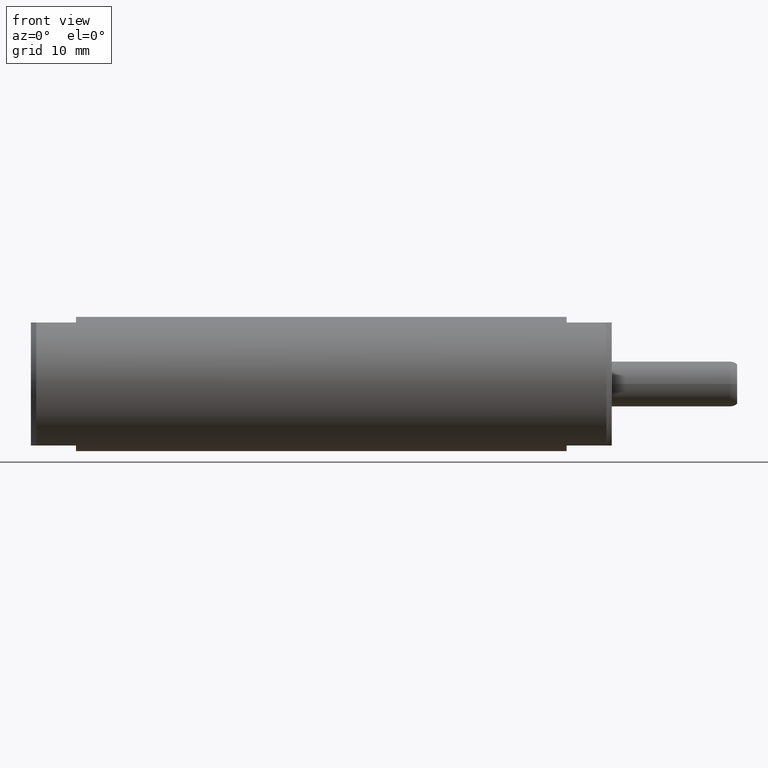
[diagram: clean part render]
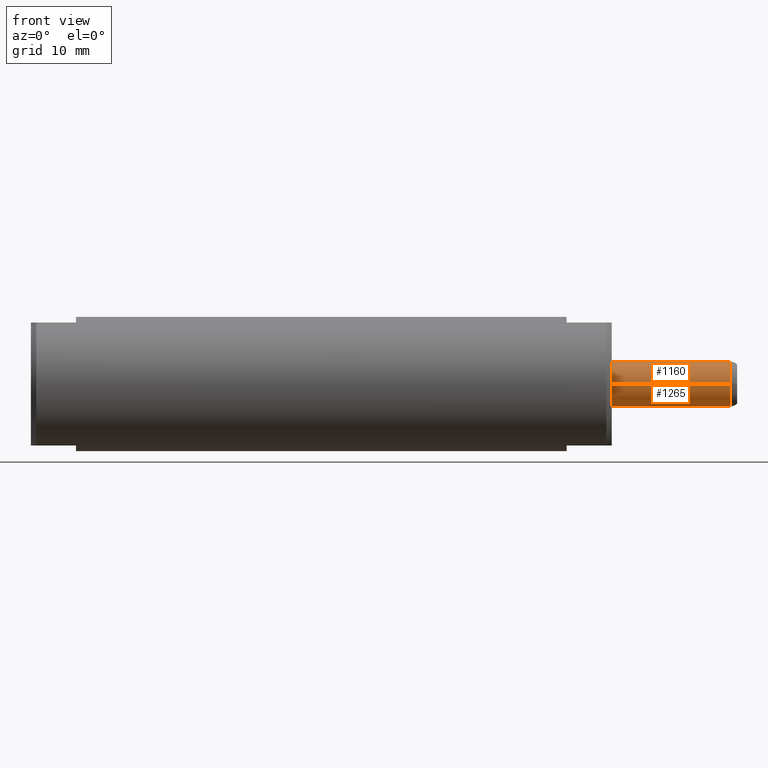
[diagram: same view with one multi-face feature highlighted, each face labeled with its STEP entity id]
A machine part, front view. The highlighted faces form ONE feature: a constant-radius fillet chain: 2 tangent blend faces with common blend radius 3.175 mm. The faces share edges in the B-rep.
Their STEP definitions:
[1] entity #1265 (Cylinder):
#550=CARTESIAN_POINT('',(3.219E0,0.E0,0.E0));
#551=DIRECTION('',(1.E0,0.E0,0.E0));
#552=DIRECTION('',(0.E0,-1.E0,0.E0));
#553=AXIS2_PLACEMENT_3D('',#550,#551,#552);
#628=CARTESIAN_POINT('',(3.874E0,0.E0,0.E0));
#629=DIRECTION('',(1.E0,0.E0,0.E0));
#630=DIRECTION('',(0.E0,-1.E0,0.E0));
#631=AXIS2_PLACEMENT_3D('',#628,#629,#630);
#636=DIRECTION('',(-1.E0,0.E0,0.E0));
#637=VECTOR('',#636,6.55E-1);
#638=CARTESIAN_POINT('',(3.874E0,1.25E-1,0.E0));
#639=LINE('',#638,#637);
#643=DIRECTION('',(-1.E0,0.E0,0.E0));
#644=VECTOR('',#643,6.55E-1);
#645=CARTESIAN_POINT('',(3.874E0,-1.25E-1,0.E0));
#646=LINE('',#645,#644);
#738=CARTESIAN_POINT('',(3.219E0,1.25E-1,0.E0));
#739=CARTESIAN_POINT('',(3.219E0,-1.25E-1,0.E0));
#740=VERTEX_POINT('',#738);
#741=VERTEX_POINT('',#739);
#746=CARTESIAN_POINT('',(3.874E0,1.25E-1,0.E0));
#747=CARTESIAN_POINT('',(3.874E0,-1.25E-1,0.E0));
#748=VERTEX_POINT('',#746);
#749=VERTEX_POINT('',#747);
#1254=CARTESIAN_POINT('',(3.18425E0,0.E0,0.E0));
#1255=DIRECTION('',(1.E0,0.E0,0.E0));
#1256=DIRECTION('',(0.E0,-1.E0,0.E0));
#1257=AXIS2_PLACEMENT_3D('',#1254,#1255,#1256);
#1258=CYLINDRICAL_SURFACE('',#1257,1.25E-1);
#1259=ORIENTED_EDGE('',*,*,#1236,.T.);
#1260=ORIENTED_EDGE('',*,*,#1156,.T.);
#1261=ORIENTED_EDGE('',*,*,#1141,.F.);
#1262=ORIENTED_EDGE('',*,*,#1153,.F.);
#1263=EDGE_LOOP('',(#1259,#1260,#1261,#1262));
#1264=FACE_OUTER_BOUND('',#1263,.F.);
#554=CIRCLE('',#553,1.25E-1);
#632=CIRCLE('',#631,1.25E-1);
#1141=EDGE_CURVE('',#741,#740,#554,.T.);
#1153=EDGE_CURVE('',#749,#741,#646,.T.);
#1156=EDGE_CURVE('',#748,#740,#639,.T.);
#1236=EDGE_CURVE('',#749,#748,#632,.T.);
#1265=ADVANCED_FACE('',(#1264),#1258,.T.);
[2] entity #1160 (Cylinder):
#542=CARTESIAN_POINT('',(3.219E0,0.E0,0.E0));
#543=DIRECTION('',(1.E0,0.E0,0.E0));
#544=DIRECTION('',(0.E0,1.E0,0.E0));
#545=AXIS2_PLACEMENT_3D('',#542,#543,#544);
#580=CARTESIAN_POINT('',(3.874E0,0.E0,0.E0));
#581=DIRECTION('',(1.E0,0.E0,0.E0));
#582=DIRECTION('',(0.E0,1.E0,0.E0));
#583=AXIS2_PLACEMENT_3D('',#580,#581,#582);
#636=DIRECTION('',(-1.E0,0.E0,0.E0));
#637=VECTOR('',#636,6.55E-1);
#638=CARTESIAN_POINT('',(3.874E0,1.25E-1,0.E0));
#639=LINE('',#638,#637);
#643=DIRECTION('',(-1.E0,0.E0,0.E0));
#644=VECTOR('',#643,6.55E-1);
#645=CARTESIAN_POINT('',(3.874E0,-1.25E-1,0.E0));
#646=LINE('',#645,#644);
#738=CARTESIAN_POINT('',(3.219E0,1.25E-1,0.E0));
#739=CARTESIAN_POINT('',(3.219E0,-1.25E-1,0.E0));
#740=VERTEX_POINT('',#738);
#741=VERTEX_POINT('',#739);
#746=CARTESIAN_POINT('',(3.874E0,1.25E-1,0.E0));
#747=CARTESIAN_POINT('',(3.874E0,-1.25E-1,0.E0));
#748=VERTEX_POINT('',#746);
#749=VERTEX_POINT('',#747);
#1146=CARTESIAN_POINT('',(3.18425E0,0.E0,0.E0));
#1147=DIRECTION('',(1.E0,0.E0,0.E0));
#1148=DIRECTION('',(0.E0,-1.E0,0.E0));
#1149=AXIS2_PLACEMENT_3D('',#1146,#1147,#1148);
#1150=CYLINDRICAL_SURFACE('',#1149,1.25E-1);
#1152=ORIENTED_EDGE('',*,*,#1151,.T.);
#1154=ORIENTED_EDGE('',*,*,#1153,.T.);
#1155=ORIENTED_EDGE('',*,*,#1139,.F.);
#1157=ORIENTED_EDGE('',*,*,#1156,.F.);
#1158=EDGE_LOOP('',(#1152,#1154,#1155,#1157));
#1159=FACE_OUTER_BOUND('',#1158,.F.);
#546=CIRCLE('',#545,1.25E-1);
#584=CIRCLE('',#583,1.25E-1);
#1139=EDGE_CURVE('',#740,#741,#546,.T.);
#1151=EDGE_CURVE('',#748,#749,#584,.T.);
#1153=EDGE_CURVE('',#749,#741,#646,.T.);
#1156=EDGE_CURVE('',#748,#740,#639,.T.);
#1160=ADVANCED_FACE('',(#1159),#1150,.T.);